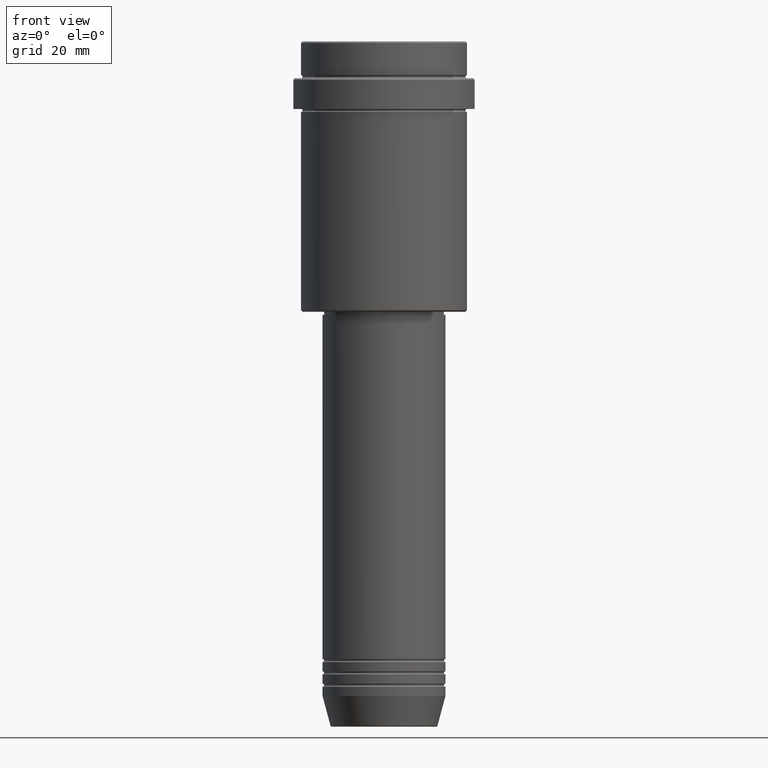
[diagram: clean part render]
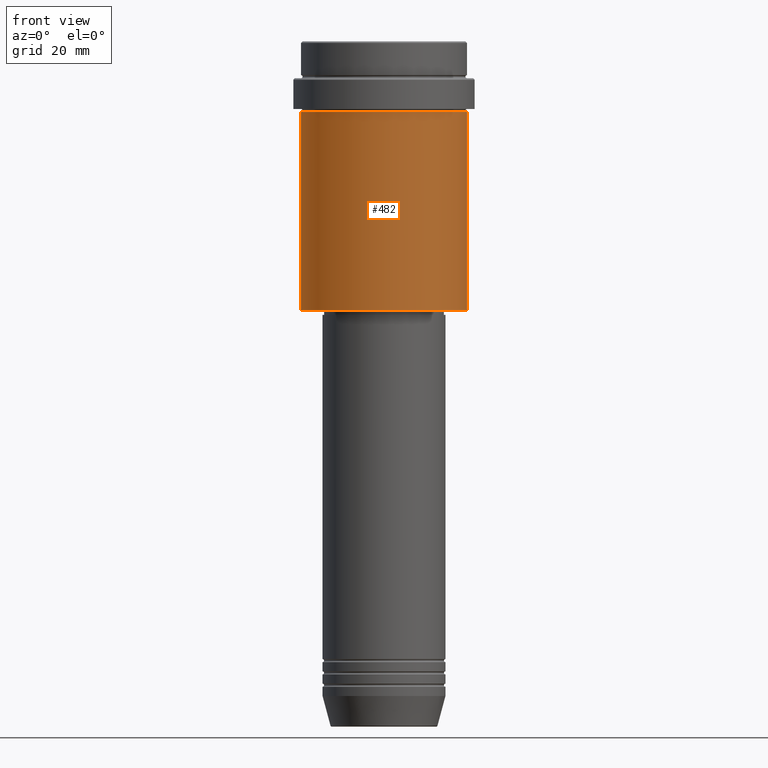
[diagram: same view with one face highlighted and labeled with its STEP entity id]
A machine part, front view. The second image highlights one B-rep face of the part: STEP entity #482.
In plain terms, the highlighted cylindrical surface (partial cylindrical patch) has radius 27 mm, axis along (-0, -0, 1).
Its self-contained STEP definition (entity closure, byte-faithful):
#24 = FACE_OUTER_BOUND ( 'NONE', #908, .T. ) ;
#135 = VERTEX_POINT ( 'NONE', #1028 ) ;
#196 = VERTEX_POINT ( 'NONE', #918 ) ;
#226 = CARTESIAN_POINT ( 'NONE',  ( -27.00000000000000355, 3.306546357697854128E-15, -23.00000000000001421 ) ) ;
#250 = EDGE_CURVE ( 'NONE', #135, #1112, #1080, .T. ) ;
#398 = DIRECTION ( 'NONE',  ( -0.000000000000000000, -0.000000000000000000, 1.000000000000000000 ) ) ;
#437 = CARTESIAN_POINT ( 'NONE',  ( 0.000000000000000000, 0.000000000000000000, 0.000000000000000000 ) ) ;
#443 = DIRECTION ( 'NONE',  ( 1.000000000000000000, 0.000000000000000000, 0.000000000000000000 ) ) ;
#449 = ORIENTED_EDGE ( 'NONE', *, *, #1069, .T. ) ;
#464 = CYLINDRICAL_SURFACE ( 'NONE', #555, 27.00000000000000355 ) ;
#465 = AXIS2_PLACEMENT_3D ( 'NONE', #538, #1188, #1293 ) ;
#482 = ADVANCED_FACE ( 'NONE', ( #24 ), #464, .T. ) ;
#513 = CIRCLE ( 'NONE', #1307, 27.00000000000000355 ) ;
#538 = CARTESIAN_POINT ( 'NONE',  ( 0.000000000000000000, 0.000000000000000000, -87.49999999999998579 ) ) ;
#540 = ORIENTED_EDGE ( 'NONE', *, *, #250, .T. ) ;
#545 = DIRECTION ( 'NONE',  ( -0.000000000000000000, -0.000000000000000000, 1.000000000000000000 ) ) ;
#555 = AXIS2_PLACEMENT_3D ( 'NONE', #437, #902, #443 ) ;
#560 = EDGE_CURVE ( 'NONE', #1294, #196, #513, .T. ) ;
#624 = CARTESIAN_POINT ( 'NONE',  ( 27.00000000000000355, 0.000000000000000000, 0.000000000000000000 ) ) ;
#757 = LINE ( 'NONE', #1415, #879 ) ;
#812 = LINE ( 'NONE', #624, #1153 ) ;
#814 = ORIENTED_EDGE ( 'NONE', *, *, #560, .F. ) ;
#879 = VECTOR ( 'NONE', #545, 1000.000000000000000 ) ;
#902 = DIRECTION ( 'NONE',  ( -0.000000000000000000, -0.000000000000000000, 1.000000000000000000 ) ) ;
#908 = EDGE_LOOP ( 'NONE', ( #1155, #540, #449, #814 ) ) ;
#918 = CARTESIAN_POINT ( 'NONE',  ( 27.00000000000000355, 0.000000000000000000, -23.00000000000001421 ) ) ;
#1028 = CARTESIAN_POINT ( 'NONE',  ( -27.00000000000000355, 3.306546357697854128E-15, -87.49999999999998579 ) ) ;
#1048 = CARTESIAN_POINT ( 'NONE',  ( 0.000000000000000000, 0.000000000000000000, -23.00000000000001421 ) ) ;
#1069 = EDGE_CURVE ( 'NONE', #1112, #196, #812, .T. ) ;
#1072 = CARTESIAN_POINT ( 'NONE',  ( 27.00000000000000355, 0.000000000000000000, -87.49999999999998579 ) ) ;
#1080 = CIRCLE ( 'NONE', #465, 27.00000000000000355 ) ;
#1112 = VERTEX_POINT ( 'NONE', #1072 ) ;
#1119 = EDGE_CURVE ( 'NONE', #135, #1294, #757, .T. ) ;
#1136 = DIRECTION ( 'NONE',  ( 1.000000000000000000, 0.000000000000000000, 0.000000000000000000 ) ) ;
#1153 = VECTOR ( 'NONE', #398, 1000.000000000000000 ) ;
#1155 = ORIENTED_EDGE ( 'NONE', *, *, #1119, .F. ) ;
#1188 = DIRECTION ( 'NONE',  ( -0.000000000000000000, -0.000000000000000000, 1.000000000000000000 ) ) ;
#1293 = DIRECTION ( 'NONE',  ( -1.000000000000000000, 0.000000000000000000, 0.000000000000000000 ) ) ;
#1294 = VERTEX_POINT ( 'NONE', #226 ) ;
#1307 = AXIS2_PLACEMENT_3D ( 'NONE', #1048, #1362, #1136 ) ;
#1362 = DIRECTION ( 'NONE',  ( -0.000000000000000000, -0.000000000000000000, 1.000000000000000000 ) ) ;
#1415 = CARTESIAN_POINT ( 'NONE',  ( -27.00000000000000355, 3.306546357697854128E-15, 0.000000000000000000 ) ) ;